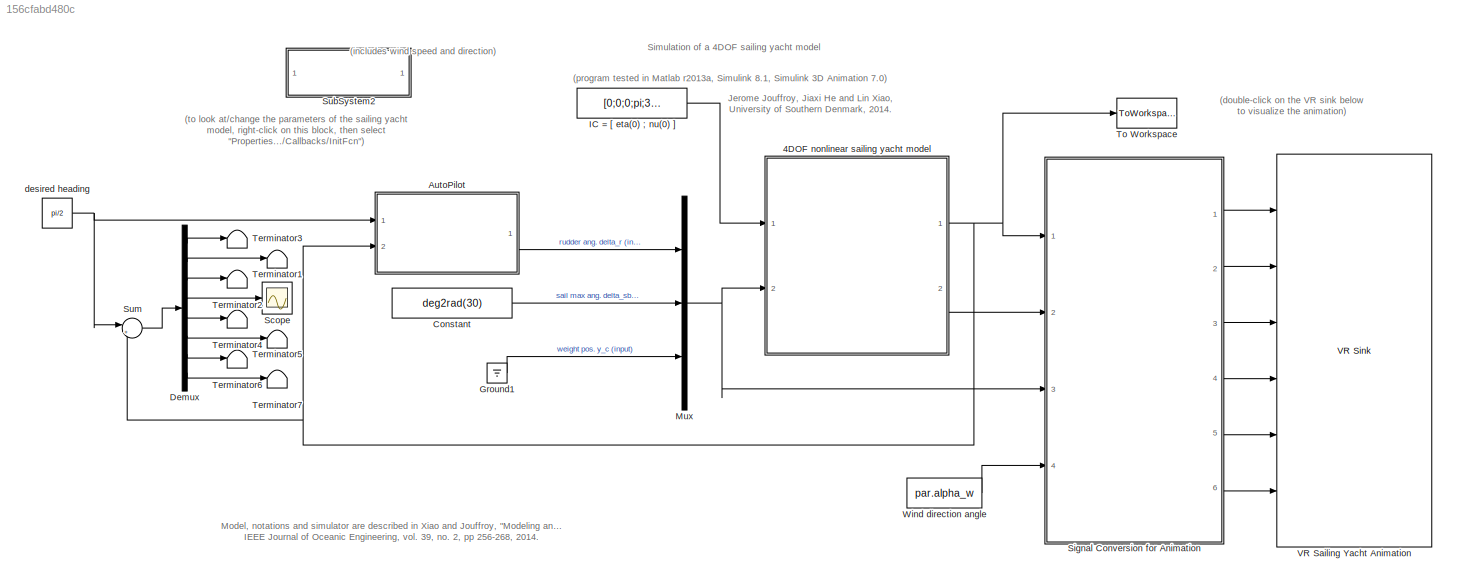
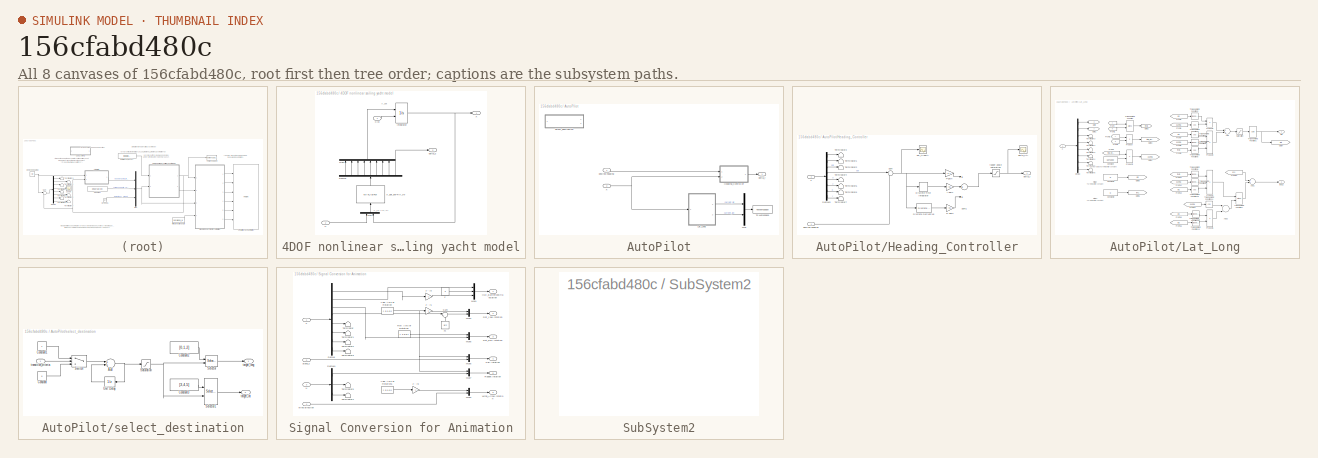
[diagram: thumbnail index - all 8 canvases of the model, root first then tree order]
MODEL slx_156cfabd480c
KIND model
CONFIG AbsTol = auto
CONFIG FixedStep = 0.05
CONFIG MaxStep = auto
CONFIG MinStep = auto
CONFIG RelTol = 1e-3
CONFIG SampleTimeConstraint = Unconstrained
CONFIG Solver = ode45
CONFIG SolverMode = Auto
CONFIG SolverName = ode45
CONFIG StartTime = 0.0
CONFIG StopTime = 70
BLOCK [SubSystem] 4DOF nonlinear sailing yacht model
  Ports = [2, 2]
  RequestExecContextInheritance = off
  Variant = off
BLOCK [Demux] 4DOF nonlinear sailing yacht model/Demux
  DisplayOption = bar
  Outputs = 9
  Ports = [1, 9]
BLOCK [Integrator] 4DOF nonlinear sailing yacht model/Integrator
  InitialCondition = [0;0;0;pi;1;0;0;0]
  InitialConditionSource = external
  Ports = [2, 1]
BLOCK [Mux] 4DOF nonlinear sailing yacht model/Mux
  DisplayOption = bar
  Inputs = 2
  Ports = [2, 1]
BLOCK [Mux] 4DOF nonlinear sailing yacht model/Mux1
  DisplayOption = bar
  Inputs = 8
  Ports = [8, 1]
BLOCK [Inport] 4DOF nonlinear sailing yacht model/U
  IconDisplay = Port number
  Port = 2
BLOCK [Outport] 4DOF nonlinear sailing yacht model/X
  IconDisplay = Port number
BLOCK [Inport] 4DOF nonlinear sailing yacht model/X(0)
  IconDisplay = Port number
BLOCK [MATLABFcn] 4DOF nonlinear sailing yacht model/X_dot_ext=f(V_in)
  MATLABFcn = f
  OutputDimensions = 9
  Ports = [1, 1]
BLOCK [Outport] 4DOF nonlinear sailing yacht model/delta_s
  IconDisplay = Port number
  Port = 2
BLOCK [SubSystem] AutoPilot
  PermitHierarchicalResolution = None
  Ports = [2, 1]
  RequestExecContextInheritance = off
  SystemSampleTime = 0.1
  TreatAsAtomicUnit = on
  Variant = off
BLOCK [SubSystem] AutoPilot/Heading_Controller
  Ports = [2, 1]
  RequestExecContextInheritance = off
  Variant = off
BLOCK [Gain] AutoPilot/Heading_Controller/D-gain
  Gain = -0.1
  OutDataTypeStr = Inherit: Inherit via internal rule
  ParamDataTypeStr = Inherit: Inherit via internal rule
  SaturateOnIntegerOverflow = off
BLOCK [Demux] AutoPilot/Heading_Controller/Demux3
  DisplayOption = bar
  Outputs = 8
  Ports = [1, 8]
BLOCK [Reference] AutoPilot/Heading_Controller/Discrete Derivative  REF=simulink/Discrete/Discrete Derivative
  Ports = [1, 1]
  SourceBlock = simulink/Discrete/Discrete Derivative
  SourceType = Discrete Derivative
BLOCK [DiscreteIntegrator] AutoPilot/Heading_Controller/Discrete-Time Integrator
  ICPrevOutput = DiscIntNeverNeededParam
  ICPrevScaledInput = DiscIntNeverNeededParam
  InitialConditionSetting = State (most efficient)
  IntegratorMethod = Integration: Trapezoidal
  Ports = [1, 1]
  SampleTime = -1
BLOCK [Gain] AutoPilot/Heading_Controller/I-gain
  Gain = -0.1
  OutDataTypeStr = Inherit: Inherit via internal rule
  ParamDataTypeStr = Inherit: Inherit via internal rule
  SaturateOnIntegerOverflow = off
BLOCK [Gain] AutoPilot/Heading_Controller/P-gain
  Gain = -0.7
  OutDataTypeStr = Inherit: Inherit via internal rule
  ParamDataTypeStr = Inherit: Inherit via internal rule
  SaturateOnIntegerOverflow = off
BLOCK [Sum] AutoPilot/Heading_Controller/Sum
  IconShape = round
  InputSameDT = off
  Inputs = |+-
  OutDataTypeStr = Inherit: Inherit via internal rule
  Ports = [2, 1]
BLOCK [Sum] AutoPilot/Heading_Controller/Sum1
  InputSameDT = off
  Inputs = +++
  OutDataTypeStr = Inherit: Inherit via internal rule
  Ports = [3, 1]
  SaturateOnIntegerOverflow = off
BLOCK [Terminator] AutoPilot/Heading_Controller/Terminator1
BLOCK [Terminator] AutoPilot/Heading_Controller/Terminator2
BLOCK [Terminator] AutoPilot/Heading_Controller/Terminator3
BLOCK [Terminator] AutoPilot/Heading_Controller/Terminator4
BLOCK [Terminator] AutoPilot/Heading_Controller/Terminator5
BLOCK [Terminator] AutoPilot/Heading_Controller/Terminator6
BLOCK [Terminator] AutoPilot/Heading_Controller/Terminator7
BLOCK [Inport] AutoPilot/Heading_Controller/X
  IconDisplay = Port number
  Port = 2
BLOCK [Outport] AutoPilot/Heading_Controller/delta_r
  IconDisplay = Port number
BLOCK [Scope] AutoPilot/Heading_Controller/delta_r(t)
  Ports = [1]
  ScopeSpecificationString = C++SS(StrPVP('Location','[357, 320, 681, 559]'),StrPVP('Open','off'),MxPVP('AxesTitles',24,'struct(''axes1'',''%<SignalLabel>'')'),MxPVP('ScopeGraphics',28,'struct(''FigureColor'',''[0.501960784313725 0.501960784313725 0.501960784313725]'',''AxesColor'',''[0 0 0]'',''AxesTickColor'',''[1 1 1]'',''LineColors'',''[1 1 0;1 0 1;0 1 1;1 0 0;0 1 0;0 0 1]'',''LineStyles'',''-|-|-|-|-|-'',''LineWidths'','...<+323ch>
BLOCK [Inport] AutoPilot/Heading_Controller/desired heading
  IconDisplay = Port number
BLOCK [Scope] AutoPilot/Heading_Controller/psi_tilde(t)
  Ports = [1]
  ScopeSpecificationString = C++SS(StrPVP('Location','[390, 524, 714, 763]'),StrPVP('Open','off'),MxPVP('AxesTitles',24,'struct(''axes1'',''%<SignalLabel>'')'),MxPVP('ScopeGraphics',28,'struct(''FigureColor'',''[0.501960784313725 0.501960784313725 0.501960784313725]'',''AxesColor'',''[0 0 0]'',''AxesTickColor'',''[1 1 1]'',''LineColors'',''[1 1 0;1 0 1;0 1 1;1 0 0;0 1 0;0 0 1]'',''LineStyles'',''-|-|-|-|-|-'',''LineWidths'','...<+364ch>
BLOCK [Saturate] AutoPilot/Heading_Controller/rudder angle saturation
  InputPortMap = u0
  LinearizeAsGain = off
  LowerLimit = -pi/3
  Ports = [1, 1]
  UpperLimit = pi/3
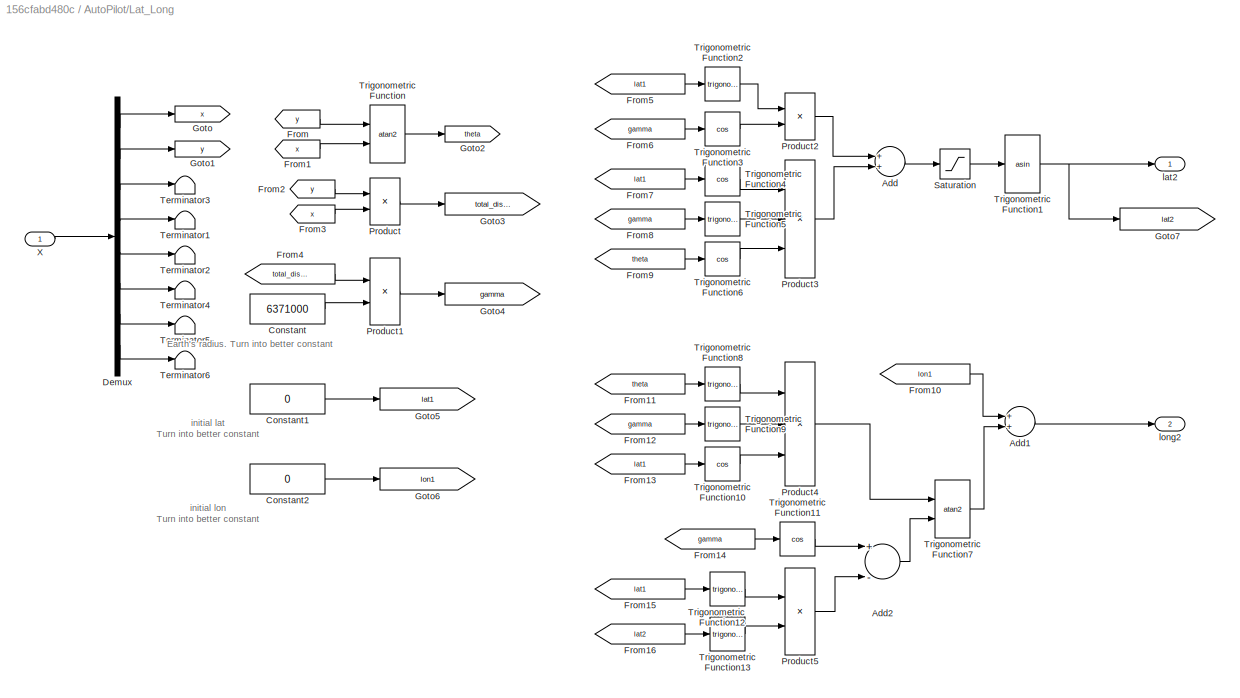
BLOCK [SubSystem] AutoPilot/Lat_Long
  Ports = [1, 2]
  RequestExecContextInheritance = off
  Variant = off
BLOCK [Sum] AutoPilot/Lat_Long/Add
  InputSameDT = off
  OutDataTypeStr = Inherit: Inherit via internal rule
  Ports = [2, 1]
  SaturateOnIntegerOverflow = off
BLOCK [Sum] AutoPilot/Lat_Long/Add1
  InputSameDT = off
  OutDataTypeStr = Inherit: Inherit via internal rule
  Ports = [2, 1]
  SaturateOnIntegerOverflow = off
BLOCK [Sum] AutoPilot/Lat_Long/Add2
  InputSameDT = off
  Inputs = +-
  OutDataTypeStr = Inherit: Inherit via internal rule
  Ports = [2, 1]
  SaturateOnIntegerOverflow = off
BLOCK [Constant] AutoPilot/Lat_Long/Constant
  Value = 6371000
BLOCK [Constant] AutoPilot/Lat_Long/Constant1
  Value = 0
BLOCK [Constant] AutoPilot/Lat_Long/Constant2
  Value = 0
BLOCK [Demux] AutoPilot/Lat_Long/Demux
  DisplayOption = bar
  Outputs = 8
  Ports = [1, 8]
BLOCK [From] AutoPilot/Lat_Long/From
  GotoTag = y
BLOCK [From] AutoPilot/Lat_Long/From1
  GotoTag = x
BLOCK [From] AutoPilot/Lat_Long/From10
  GotoTag = lon1
BLOCK [From] AutoPilot/Lat_Long/From11
  GotoTag = theta
BLOCK [From] AutoPilot/Lat_Long/From12
  GotoTag = gamma
BLOCK [From] AutoPilot/Lat_Long/From13
  GotoTag = lat1
BLOCK [From] AutoPilot/Lat_Long/From14
  GotoTag = gamma
BLOCK [From] AutoPilot/Lat_Long/From15
  GotoTag = lat1
BLOCK [From] AutoPilot/Lat_Long/From16
  GotoTag = lat2
BLOCK [From] AutoPilot/Lat_Long/From2
  GotoTag = y
BLOCK [From] AutoPilot/Lat_Long/From3
  GotoTag = x
BLOCK [From] AutoPilot/Lat_Long/From4
  GotoTag = total_distance
BLOCK [From] AutoPilot/Lat_Long/From5
  GotoTag = lat1
BLOCK [From] AutoPilot/Lat_Long/From6
  GotoTag = gamma
BLOCK [From] AutoPilot/Lat_Long/From7
  GotoTag = lat1
BLOCK [From] AutoPilot/Lat_Long/From8
  GotoTag = gamma
BLOCK [From] AutoPilot/Lat_Long/From9
  GotoTag = theta
BLOCK [Goto] AutoPilot/Lat_Long/Goto
  GotoTag = x
BLOCK [Goto] AutoPilot/Lat_Long/Goto1
  GotoTag = y
BLOCK [Goto] AutoPilot/Lat_Long/Goto2
  GotoTag = theta
BLOCK [Goto] AutoPilot/Lat_Long/Goto3
  GotoTag = total_distance
BLOCK [Goto] AutoPilot/Lat_Long/Goto4
  GotoTag = gamma
BLOCK [Goto] AutoPilot/Lat_Long/Goto5
  GotoTag = lat1
BLOCK [Goto] AutoPilot/Lat_Long/Goto6
  GotoTag = lon1
BLOCK [Goto] AutoPilot/Lat_Long/Goto7
  GotoTag = lat2
BLOCK [Product] AutoPilot/Lat_Long/Product
  InputSameDT = off
  OutDataTypeStr = Inherit: Inherit via internal rule
  Ports = [2, 1]
  RndMeth = Floor
  SaturateOnIntegerOverflow = off
BLOCK [Product] AutoPilot/Lat_Long/Product1
  InputSameDT = off
  Inputs = */
  OutDataTypeStr = Inherit: Inherit via internal rule
  Ports = [2, 1]
  RndMeth = Floor
  SaturateOnIntegerOverflow = off
BLOCK [Product] AutoPilot/Lat_Long/Product2
  InputSameDT = off
  OutDataTypeStr = Inherit: Inherit via internal rule
  Ports = [2, 1]
  RndMeth = Floor
  SaturateOnIntegerOverflow = off
BLOCK [Product] AutoPilot/Lat_Long/Product3
  InputSameDT = off
  Inputs = ***
  OutDataTypeStr = Inherit: Inherit via internal rule
  Ports = [3, 1]
  RndMeth = Floor
  SaturateOnIntegerOverflow = off
BLOCK [Product] AutoPilot/Lat_Long/Product4
  InputSameDT = off
  Inputs = 3
  OutDataTypeStr = Inherit: Inherit via internal rule
  Ports = [3, 1]
  RndMeth = Floor
  SaturateOnIntegerOverflow = off
BLOCK [Product] AutoPilot/Lat_Long/Product5
  InputSameDT = off
  OutDataTypeStr = Inherit: Inherit via internal rule
  Ports = [2, 1]
  RndMeth = Floor
  SaturateOnIntegerOverflow = off
BLOCK [Saturate] AutoPilot/Lat_Long/Saturation
  InputPortMap = u0
  LowerLimit = -1
  Ports = [1, 1]
  UpperLimit = 1
BLOCK [Terminator] AutoPilot/Lat_Long/Terminator1
BLOCK [Terminator] AutoPilot/Lat_Long/Terminator2
BLOCK [Terminator] AutoPilot/Lat_Long/Terminator3
BLOCK [Terminator] AutoPilot/Lat_Long/Terminator4
BLOCK [Terminator] AutoPilot/Lat_Long/Terminator5
BLOCK [Terminator] AutoPilot/Lat_Long/Terminator6
BLOCK [Trigonometry] AutoPilot/Lat_Long/Trigonometric Function
  Operator = atan2
  Ports = [2, 1]
BLOCK [Trigonometry] AutoPilot/Lat_Long/Trigonometric Function1
  Operator = asin
  Ports = [1, 1]
BLOCK [Trigonometry] AutoPilot/Lat_Long/Trigonometric Function10
  Operator = cos
  Ports = [1, 1]
BLOCK [Trigonometry] AutoPilot/Lat_Long/Trigonometric Function11
  Operator = cos
  Ports = [1, 1]
BLOCK [Trigonometry] AutoPilot/Lat_Long/Trigonometric Function12
  Ports = [1, 1]
BLOCK [Trigonometry] AutoPilot/Lat_Long/Trigonometric Function13
  Ports = [1, 1]
BLOCK [Trigonometry] AutoPilot/Lat_Long/Trigonometric Function2
  Ports = [1, 1]
BLOCK [Trigonometry] AutoPilot/Lat_Long/Trigonometric Function3
  Operator = cos
  Ports = [1, 1]
BLOCK [Trigonometry] AutoPilot/Lat_Long/Trigonometric Function4
  Operator = cos
  Ports = [1, 1]
BLOCK [Trigonometry] AutoPilot/Lat_Long/Trigonometric Function5
  Ports = [1, 1]
BLOCK [Trigonometry] AutoPilot/Lat_Long/Trigonometric Function6
  Operator = cos
  Ports = [1, 1]
BLOCK [Trigonometry] AutoPilot/Lat_Long/Trigonometric Function7
  Operator = atan2
  Ports = [2, 1]
BLOCK [Trigonometry] AutoPilot/Lat_Long/Trigonometric Function8
  Ports = [1, 1]
BLOCK [Trigonometry] AutoPilot/Lat_Long/Trigonometric Function9
  Ports = [1, 1]
BLOCK [Inport] AutoPilot/Lat_Long/X
  IconDisplay = Port number
BLOCK [Outport] AutoPilot/Lat_Long/lat2
  IconDisplay = Port number
BLOCK [Outport] AutoPilot/Lat_Long/long2
  IconDisplay = Port number
  Port = 2
BLOCK [Mux] AutoPilot/Mux
  DisplayOption = bar
  Inputs = 2
  Ports = [2, 1]
BLOCK [ToWorkspace] AutoPilot/To Workspace
  MaxDataPoints = inf
  Ports = [1]
  SampleTime = -1
  SaveFormat = Structure With Time
  VariableName = current_pos
BLOCK [Inport] AutoPilot/X
  IconDisplay = Port number
  Port = 2
BLOCK [Outport] AutoPilot/delta_r
  IconDisplay = Port number
BLOCK [Inport] AutoPilot/desired heading
  IconDisplay = Port number
BLOCK [SubSystem] AutoPilot/select_destination
  Ports = [1, 2]
  RequestExecContextInheritance = off
  Variant = off
BLOCK [Sum] AutoPilot/select_destination/Add
  InputSameDT = off
  OutDataTypeStr = Inherit: Inherit via internal rule
  Ports = [2, 1]
  SaturateOnIntegerOverflow = off
BLOCK [Constant] AutoPilot/select_destination/Constant
  OutDataTypeStr = int32
  Value = 0
BLOCK [Constant] AutoPilot/select_destination/Constant1
  OutDataTypeStr = int32
BLOCK [Constant] AutoPilot/select_destination/Constant2
  Value = [0,1,2]
BLOCK [Constant] AutoPilot/select_destination/Constant3
  Value = [3,4,5]
BLOCK [Saturate] AutoPilot/select_destination/Saturation
  InputPortMap = u0
  LowerLimit = 0
  Ports = [1, 1]
  UpperLimit = 2
BLOCK [Selector] AutoPilot/select_destination/Selector
  IndexMode = Zero-based
  IndexOptions = Index vector (port)
  Indices = [1 3]
  InputPortWidth = 3
  OutputSizes = 1
  Ports = [2, 1]
BLOCK [Selector] AutoPilot/select_destination/Selector1
  IndexMode = Zero-based
  IndexOptions = Index vector (port)
  Indices = [1 3]
  InputPortWidth = 3
  OutputSizes = 1
  Ports = [2, 1]
BLOCK [Switch] AutoPilot/select_destination/Switch
  Criteria = u2 > Threshold
  InputSameDT = off
  SaturateOnIntegerOverflow = off
BLOCK [UnitDelay] AutoPilot/select_destination/Unit Delay
  InputProcessing = Elements as channels (sample based)
  SampleTime = -1
BLOCK [Outport] AutoPilot/select_destination/target_lat
  IconDisplay = Port number
  Port = 2
BLOCK [Outport] AutoPilot/select_destination/target_long
  IconDisplay = Port number
BLOCK [Inport] AutoPilot/select_destination/transition_criteria
  IconDisplay = Port number
  OutDataTypeStr = boolean
BLOCK [Constant] Constant
  Value = deg2rad(30)
BLOCK [Demux] Demux
  DisplayOption = bar
  Outputs = 8
  Ports = [1, 8]
BLOCK [Ground] Ground1
BLOCK [Constant] IC = [ eta(0) ; nu(0) ]
  Value = [0;0;0;pi;3;0;0;0]
BLOCK [Mux] Mux
  DisplayOption = bar
  Inputs = 3
  Ports = [3, 1]
BLOCK [Scope] Scope
  Ports = [1]
  ScopeSpecificationString = C++SS(StrPVP('Location','[1, 49, 1681, 1009]'),StrPVP('Open','off'),MxPVP('AxesTitles',24,'struct(''axes1'',''%<SignalLabel>'')'),MxPVP('ScopeGraphics',28,'struct(''FigureColor'',''[0.5 0.5 0.5]'',''AxesColor'',''[0 0 0]'',''AxesTickColor'',''[1 1 1]'',''LineColors'',''[1 1 0;1 0 1;0 1 1;1 0 0;0 1 0;0 0 1]'',''LineStyles'',''-|-|-|-|-|-'',''LineWidths'',''[0.5 0.5 0.5 0.5 0.5 0.5]'',''MarkerStyles...<+270ch>
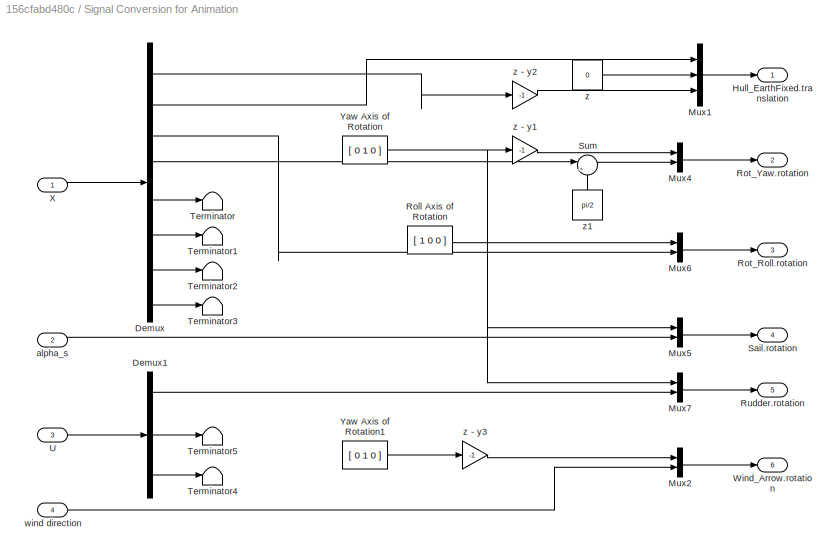
BLOCK [SubSystem] Signal Conversion for Animation
  Ports = [4, 6]
  RequestExecContextInheritance = off
  Variant = off
BLOCK [Demux] Signal Conversion for Animation/Demux
  DisplayOption = bar
  Outputs = 8
  Ports = [1, 8]
BLOCK [Demux] Signal Conversion for Animation/Demux1
  DisplayOption = bar
  Outputs = 3
  Ports = [1, 3]
BLOCK [Outport] Signal Conversion for Animation/Hull_EarthFixed.translation
  IconDisplay = Port number
BLOCK [Mux] Signal Conversion for Animation/Mux1
  DisplayOption = bar
  Inputs = 3
  Ports = [3, 1]
BLOCK [Mux] Signal Conversion for Animation/Mux2
  DisplayOption = bar
  Inputs = 2
  Ports = [2, 1]
BLOCK [Mux] Signal Conversion for Animation/Mux4
  DisplayOption = bar
  Inputs = 2
  Ports = [2, 1]
BLOCK [Mux] Signal Conversion for Animation/Mux5
  DisplayOption = bar
  Inputs = 2
  Ports = [2, 1]
BLOCK [Mux] Signal Conversion for Animation/Mux6
  DisplayOption = bar
  Inputs = 2
  Ports = [2, 1]
BLOCK [Mux] Signal Conversion for Animation/Mux7
  DisplayOption = bar
  Inputs = 2
  Ports = [2, 1]
BLOCK [Constant] Signal Conversion for Animation/Roll Axis of Rotation
  Value = [ 1 0 0 ]
BLOCK [Outport] Signal Conversion for Animation/Rot_Roll.rotation
  IconDisplay = Port number
  Port = 3
BLOCK [Outport] Signal Conversion for Animation/Rot_Yaw.rotation
  IconDisplay = Port number
  Port = 2
BLOCK [Outport] Signal Conversion for Animation/Rudder.rotation
  IconDisplay = Port number
  Port = 5
BLOCK [Outport] Signal Conversion for Animation/Sail.rotation
  IconDisplay = Port number
  Port = 4
BLOCK [Sum] Signal Conversion for Animation/Sum
  IconShape = round
  InputSameDT = off
  Inputs = |+-
  OutDataTypeStr = Inherit: Inherit via internal rule
  Ports = [2, 1]
BLOCK [Terminator] Signal Conversion for Animation/Terminator
BLOCK [Terminator] Signal Conversion for Animation/Terminator1
BLOCK [Terminator] Signal Conversion for Animation/Terminator2
BLOCK [Terminator] Signal Conversion for Animation/Terminator3
BLOCK [Terminator] Signal Conversion for Animation/Terminator4
BLOCK [Terminator] Signal Conversion for Animation/Terminator5
BLOCK [Inport] Signal Conversion for Animation/U
  IconDisplay = Port number
  Port = 3
BLOCK [Outport] Signal Conversion for Animation/Wind_Arrow.rotation
  IconDisplay = Port number
  Port = 6
BLOCK [Inport] Signal Conversion for Animation/X
  IconDisplay = Port number
BLOCK [Constant] Signal Conversion for Animation/Yaw Axis of Rotation
  Value = [ 0 1 0 ]
BLOCK [Constant] Signal Conversion for Animation/Yaw Axis of Rotation1
  Value = [ 0 1 0 ]
BLOCK [Inport] Signal Conversion for Animation/alpha_s
  IconDisplay = Port number
  Port = 2
BLOCK [Inport] Signal Conversion for Animation/wind direction
  IconDisplay = Port number
  Port = 4
BLOCK [Constant] Signal Conversion for Animation/z
  Value = 0
BLOCK [Gain] Signal Conversion for Animation/z - y1
  Gain = -1
  OutDataTypeStr = Inherit: Inherit via internal rule
  ParamDataTypeStr = Inherit: Inherit via internal rule
  SaturateOnIntegerOverflow = off
BLOCK [Gain] Signal Conversion for Animation/z - y2
  Gain = -1
  OutDataTypeStr = Inherit: Inherit via internal rule
  ParamDataTypeStr = Inherit: Inherit via internal rule
  SaturateOnIntegerOverflow = off
BLOCK [Gain] Signal Conversion for Animation/z - y3
  Gain = -1
  OutDataTypeStr = Inherit: Inherit via internal rule
  ParamDataTypeStr = Inherit: Inherit via internal rule
  SaturateOnIntegerOverflow = off
BLOCK [Constant] Signal Conversion for Animation/z1
  Value = pi/2
BLOCK [SubSystem] SubSystem2
  InitFcn = global par\npar.m = 25900;                         % (kg),mass of the vehicle\npar.Ixx = 133690;          \npar.Izz = 24760;      \npar.Ixz = 2180;                        % moment of inertia\npar.a11 = 970;   \npar.a22 = 17430; \npar.a44 = 106500;\npar.a66 = 101650;\npar.a24 = -13160;\npar.a26 = -6190; \npar.a46 = 4730;                        % (kg),added mass coef.\n\npar.vt = 10;                           % ...<+1841ch>
  Ports = []
  RequestExecContextInheritance = off
  Variant = off
BLOCK [Sum] Sum
  IconShape = round
  InputSameDT = off
  Inputs = |+-
  OutDataTypeStr = Inherit: Inherit via internal rule
  Ports = [2, 1]
  SaturateOnIntegerOverflow = off
BLOCK [Terminator] Terminator1
BLOCK [Terminator] Terminator2
BLOCK [Terminator] Terminator3
BLOCK [Terminator] Terminator4
BLOCK [Terminator] Terminator5
BLOCK [Terminator] Terminator6
BLOCK [Terminator] Terminator7
BLOCK [ToWorkspace] To Workspace
  MaxDataPoints = inf
  Ports = [1]
  SampleTime = -1
  SaveFormat = Structure With Time
  VariableName = X
BLOCK [Reference] VR Sailing Yacht Animation  REF=vrlib/VR Sink
  InstantiateOnLoad = on
  Ports = [6]
  SourceBlock = vrlib/VR Sink
  SourceType = Virtual Reality Sink
BLOCK [Constant] Wind direction angle
  Value = par.alpha_w
BLOCK [Constant] desired heading
  Value = pi/2
ANNOTATION (root): (double-click on the VR sink below to visualize the animation)
ANNOTATION (root): (includes wind speed and direction)
ANNOTATION (root): (program tested in Matlab r2013a, Simulink 8.1, Simulink 3D Animation 7.0)
ANNOTATION (root): (to look at/change the parameters of the sailing yacht model, right-click on this block, then select "Properties.../Callbacks/InitFcn")
ANNOTATION (root): Jerome Jouffroy, Jiaxi He and Lin Xiao, University of Southern Denmark, 2014.
ANNOTATION (root): Model, notations and simulator are described in Xiao and Jouffroy, "Modeling and nonlinear heading control of sailing yachts", IEEE Journal of Oceanic Engineering, vol. 39, no. 2, pp 256-268, 2014.
ANNOTATION (root): Simulation of a 4DOF sailing yacht model
ANNOTATION 4DOF nonlinear sailing yacht model: V_in = [U,X]
ANNOTATION 4DOF nonlinear sailing yacht model: X_dot
ANNOTATION AutoPilot/Lat_Long: Earth's radius. Turn into better constant
ANNOTATION AutoPilot/Lat_Long: initial lat Turn into better constant
ANNOTATION AutoPilot/Lat_Long: initial lon Turn into better constant
LINE 4DOF nonlinear sailing yacht model/Demux:1 -> 4DOF nonlinear sailing yacht model/Mux1:1
LINE 4DOF nonlinear sailing yacht model/Demux:2 -> 4DOF nonlinear sailing yacht model/Mux1:2
LINE 4DOF nonlinear sailing yacht model/Demux:3 -> 4DOF nonlinear sailing yacht model/Mux1:3
LINE 4DOF nonlinear sailing yacht model/Demux:4 -> 4DOF nonlinear sailing yacht model/Mux1:4
LINE 4DOF nonlinear sailing yacht model/Demux:5 -> 4DOF nonlinear sailing yacht model/Mux1:5
LINE 4DOF nonlinear sailing yacht model/Demux:6 -> 4DOF nonlinear sailing yacht model/Mux1:6
LINE 4DOF nonlinear sailing yacht model/Demux:7 -> 4DOF nonlinear sailing yacht model/Mux1:7
LINE 4DOF nonlinear sailing yacht model/Demux:8 -> 4DOF nonlinear sailing yacht model/Mux1:8
LINE 4DOF nonlinear sailing yacht model/Demux:9 -> 4DOF nonlinear sailing yacht model/delta_s:1
NET 4DOF nonlinear sailing yacht model/Integrator:1 -> 4DOF nonlinear sailing yacht model/Mux:2, 4DOF nonlinear sailing yacht model/X:1
LINE 4DOF nonlinear sailing yacht model/Mux1:1 -> 4DOF nonlinear sailing yacht model/Integrator:1
LINE 4DOF nonlinear sailing yacht model/Mux:1 -> 4DOF nonlinear sailing yacht model/X_dot_ext=f(V_in):1
LINE 4DOF nonlinear sailing yacht model/U:1 -> 4DOF nonlinear sailing yacht model/Mux:1
LINE 4DOF nonlinear sailing yacht model/X(0):1 -> 4DOF nonlinear sailing yacht model/Integrator:2
LINE 4DOF nonlinear sailing yacht model/X_dot_ext=f(V_in):1 -> 4DOF nonlinear sailing yacht model/Demux:1
NET 4DOF nonlinear sailing yacht model:1 -> AutoPilot:2, Signal Conversion for Animation:1, Sum:2, To Workspace:1
LINE 4DOF nonlinear sailing yacht model:2 -> Signal Conversion for Animation:2
LINE AutoPilot/Heading_Controller/D-gain:1 -> AutoPilot/Heading_Controller/Sum1:3
LINE AutoPilot/Heading_Controller/Demux3:1 -> AutoPilot/Heading_Controller/Terminator3:1
LINE AutoPilot/Heading_Controller/Demux3:2 -> AutoPilot/Heading_Controller/Terminator1:1
LINE AutoPilot/Heading_Controller/Demux3:3 -> AutoPilot/Heading_Controller/Terminator2:1
LINE AutoPilot/Heading_Controller/Demux3:4 -> AutoPilot/Heading_Controller/Sum:1
LINE AutoPilot/Heading_Controller/Demux3:5 -> AutoPilot/Heading_Controller/Terminator4:1
LINE AutoPilot/Heading_Controller/Demux3:6 -> AutoPilot/Heading_Controller/Terminator5:1
LINE AutoPilot/Heading_Controller/Demux3:7 -> AutoPilot/Heading_Controller/Terminator6:1
LINE AutoPilot/Heading_Controller/Demux3:8 -> AutoPilot/Heading_Controller/Terminator7:1
LINE AutoPilot/Heading_Controller/Discrete Derivative:1 -> AutoPilot/Heading_Controller/D-gain:1
LINE AutoPilot/Heading_Controller/Discrete-Time Integrator:1 -> AutoPilot/Heading_Controller/I-gain:1
LINE AutoPilot/Heading_Controller/I-gain:1 -> AutoPilot/Heading_Controller/Sum1:2
LINE AutoPilot/Heading_Controller/P-gain:1 -> AutoPilot/Heading_Controller/Sum1:1
LINE AutoPilot/Heading_Controller/Sum1:1 -> AutoPilot/Heading_Controller/rudder angle saturation:1
NET AutoPilot/Heading_Controller/Sum:1 -> AutoPilot/Heading_Controller/Discrete Derivative:1, AutoPilot/Heading_Controller/Discrete-Time Integrator:1, AutoPilot/Heading_Controller/P-gain:1, AutoPilot/Heading_Controller/psi_tilde(t):1
LINE AutoPilot/Heading_Controller/X:1 -> AutoPilot/Heading_Controller/Demux3:1
LINE AutoPilot/Heading_Controller/desired heading:1 -> AutoPilot/Heading_Controller/Sum:2
NET AutoPilot/Heading_Controller/rudder angle saturation:1 -> AutoPilot/Heading_Controller/delta_r(t):1, AutoPilot/Heading_Controller/delta_r:1
LINE AutoPilot/Heading_Controller:1 -> AutoPilot/delta_r:1
LINE AutoPilot/Lat_Long/Add1:1 -> AutoPilot/Lat_Long/long2:1
LINE AutoPilot/Lat_Long/Add2:1 -> AutoPilot/Lat_Long/Trigonometric Function7:2
LINE AutoPilot/Lat_Long/Add:1 -> AutoPilot/Lat_Long/Saturation:1
LINE AutoPilot/Lat_Long/Constant1:1 -> AutoPilot/Lat_Long/Goto5:1
LINE AutoPilot/Lat_Long/Constant2:1 -> AutoPilot/Lat_Long/Goto6:1
LINE AutoPilot/Lat_Long/Constant:1 -> AutoPilot/Lat_Long/Product1:2
LINE AutoPilot/Lat_Long/Demux:1 -> AutoPilot/Lat_Long/Goto:1
LINE AutoPilot/Lat_Long/Demux:2 -> AutoPilot/Lat_Long/Goto1:1
LINE AutoPilot/Lat_Long/Demux:3 -> AutoPilot/Lat_Long/Terminator3:1
LINE AutoPilot/Lat_Long/Demux:4 -> AutoPilot/Lat_Long/Terminator1:1
LINE AutoPilot/Lat_Long/Demux:5 -> AutoPilot/Lat_Long/Terminator2:1
LINE AutoPilot/Lat_Long/Demux:6 -> AutoPilot/Lat_Long/Terminator4:1
LINE AutoPilot/Lat_Long/Demux:7 -> AutoPilot/Lat_Long/Terminator5:1
LINE AutoPilot/Lat_Long/Demux:8 -> AutoPilot/Lat_Long/Terminator6:1
LINE AutoPilot/Lat_Long/From10:1 -> AutoPilot/Lat_Long/Add1:1
LINE AutoPilot/Lat_Long/From11:1 -> AutoPilot/Lat_Long/Trigonometric Function8:1
LINE AutoPilot/Lat_Long/From12:1 -> AutoPilot/Lat_Long/Trigonometric Function9:1
LINE AutoPilot/Lat_Long/From13:1 -> AutoPilot/Lat_Long/Trigonometric Function10:1
LINE AutoPilot/Lat_Long/From14:1 -> AutoPilot/Lat_Long/Trigonometric Function11:1
LINE AutoPilot/Lat_Long/From15:1 -> AutoPilot/Lat_Long/Trigonometric Function12:1
LINE AutoPilot/Lat_Long/From16:1 -> AutoPilot/Lat_Long/Trigonometric Function13:1
LINE AutoPilot/Lat_Long/From1:1 -> AutoPilot/Lat_Long/Trigonometric Function:2
LINE AutoPilot/Lat_Long/From2:1 -> AutoPilot/Lat_Long/Product:1
LINE AutoPilot/Lat_Long/From3:1 -> AutoPilot/Lat_Long/Product:2
LINE AutoPilot/Lat_Long/From4:1 -> AutoPilot/Lat_Long/Product1:1
LINE AutoPilot/Lat_Long/From5:1 -> AutoPilot/Lat_Long/Trigonometric Function2:1
LINE AutoPilot/Lat_Long/From6:1 -> AutoPilot/Lat_Long/Trigonometric Function3:1
LINE AutoPilot/Lat_Long/From7:1 -> AutoPilot/Lat_Long/Trigonometric Function4:1
LINE AutoPilot/Lat_Long/From8:1 -> AutoPilot/Lat_Long/Trigonometric Function5:1
LINE AutoPilot/Lat_Long/From9:1 -> AutoPilot/Lat_Long/Trigonometric Function6:1
LINE AutoPilot/Lat_Long/From:1 -> AutoPilot/Lat_Long/Trigonometric Function:1
LINE AutoPilot/Lat_Long/Product1:1 -> AutoPilot/Lat_Long/Goto4:1
LINE AutoPilot/Lat_Long/Product2:1 -> AutoPilot/Lat_Long/Add:1
LINE AutoPilot/Lat_Long/Product3:1 -> AutoPilot/Lat_Long/Add:2
LINE AutoPilot/Lat_Long/Product4:1 -> AutoPilot/Lat_Long/Trigonometric Function7:1
LINE AutoPilot/Lat_Long/Product5:1 -> AutoPilot/Lat_Long/Add2:2
LINE AutoPilot/Lat_Long/Product:1 -> AutoPilot/Lat_Long/Goto3:1
LINE AutoPilot/Lat_Long/Saturation:1 -> AutoPilot/Lat_Long/Trigonometric Function1:1
LINE AutoPilot/Lat_Long/Trigonometric Function10:1 -> AutoPilot/Lat_Long/Product4:3
LINE AutoPilot/Lat_Long/Trigonometric Function11:1 -> AutoPilot/Lat_Long/Add2:1
LINE AutoPilot/Lat_Long/Trigonometric Function12:1 -> AutoPilot/Lat_Long/Product5:1
LINE AutoPilot/Lat_Long/Trigonometric Function13:1 -> AutoPilot/Lat_Long/Product5:2
NET AutoPilot/Lat_Long/Trigonometric Function1:1 -> AutoPilot/Lat_Long/Goto7:1, AutoPilot/Lat_Long/lat2:1
LINE AutoPilot/Lat_Long/Trigonometric Function2:1 -> AutoPilot/Lat_Long/Product2:1
LINE AutoPilot/Lat_Long/Trigonometric Function3:1 -> AutoPilot/Lat_Long/Product2:2
LINE AutoPilot/Lat_Long/Trigonometric Function4:1 -> AutoPilot/Lat_Long/Product3:1
LINE AutoPilot/Lat_Long/Trigonometric Function5:1 -> AutoPilot/Lat_Long/Product3:2
LINE AutoPilot/Lat_Long/Trigonometric Function6:1 -> AutoPilot/Lat_Long/Product3:3
LINE AutoPilot/Lat_Long/Trigonometric Function7:1 -> AutoPilot/Lat_Long/Add1:2
LINE AutoPilot/Lat_Long/Trigonometric Function8:1 -> AutoPilot/Lat_Long/Product4:1
LINE AutoPilot/Lat_Long/Trigonometric Function9:1 -> AutoPilot/Lat_Long/Product4:2
LINE AutoPilot/Lat_Long/Trigonometric Function:1 -> AutoPilot/Lat_Long/Goto2:1
LINE AutoPilot/Lat_Long/X:1 -> AutoPilot/Lat_Long/Demux:1
LINE AutoPilot/Lat_Long:1 -> AutoPilot/Mux:1
LINE AutoPilot/Lat_Long:2 -> AutoPilot/Mux:2
LINE AutoPilot/Mux:1 -> AutoPilot/To Workspace:1
NET AutoPilot/X:1 -> AutoPilot/Heading_Controller:2, AutoPilot/Lat_Long:1
LINE AutoPilot/desired heading:1 -> AutoPilot/Heading_Controller:1
NET AutoPilot/select_destination/Add:1 -> AutoPilot/select_destination/Saturation:1, AutoPilot/select_destination/Unit Delay:1
LINE AutoPilot/select_destination/Constant1:1 -> AutoPilot/select_destination/Switch:1
LINE AutoPilot/select_destination/Constant2:1 -> AutoPilot/select_destination/Selector:1
LINE AutoPilot/select_destination/Constant3:1 -> AutoPilot/select_destination/Selector1:1
LINE AutoPilot/select_destination/Constant:1 -> AutoPilot/select_destination/Switch:3
NET AutoPilot/select_destination/Saturation:1 -> AutoPilot/select_destination/Selector1:2, AutoPilot/select_destination/Selector:2
LINE AutoPilot/select_destination/Selector1:1 -> AutoPilot/select_destination/target_lat:1
LINE AutoPilot/select_destination/Selector:1 -> AutoPilot/select_destination/target_long:1
LINE AutoPilot/select_destination/Switch:1 -> AutoPilot/select_destination/Add:1
LINE AutoPilot/select_destination/Unit Delay:1 -> AutoPilot/select_destination/Add:2
LINE AutoPilot/select_destination/transition_criteria:1 -> AutoPilot/select_destination/Switch:2
LINE AutoPilot:1 -> Mux:1
LINE Constant:1 -> Mux:2
LINE Demux:1 -> Terminator3:1
LINE Demux:2 -> Terminator1:1
LINE Demux:3 -> Terminator2:1
LINE Demux:4 -> Scope:1
LINE Demux:5 -> Terminator4:1
LINE Demux:6 -> Terminator5:1
LINE Demux:7 -> Terminator6:1
LINE Demux:8 -> Terminator7:1
LINE Ground1:1 -> Mux:3
LINE IC = [ eta(0) ; nu(0) ]:1 -> 4DOF nonlinear sailing yacht model:1
NET Mux:1 -> 4DOF nonlinear sailing yacht model:2, Signal Conversion for Animation:3
LINE Signal Conversion for Animation/Demux1:1 -> Signal Conversion for Animation/Mux7:2
LINE Signal Conversion for Animation/Demux1:2 -> Signal Conversion for Animation/Terminator5:1
LINE Signal Conversion for Animation/Demux1:3 -> Signal Conversion for Animation/Terminator4:1
LINE Signal Conversion for Animation/Demux:1 -> Signal Conversion for Animation/z - y2:1
LINE Signal Conversion for Animation/Demux:2 -> Signal Conversion for Animation/Mux1:1
LINE Signal Conversion for Animation/Demux:3 -> Signal Conversion for Animation/Mux6:2
LINE Signal Conversion for Animation/Demux:4 -> Signal Conversion for Animation/Sum:1
LINE Signal Conversion for Animation/Demux:5 -> Signal Conversion for Animation/Terminator:1
LINE Signal Conversion for Animation/Demux:6 -> Signal Conversion for Animation/Terminator1:1
LINE Signal Conversion for Animation/Demux:7 -> Signal Conversion for Animation/Terminator2:1
LINE Signal Conversion for Animation/Demux:8 -> Signal Conversion for Animation/Terminator3:1
LINE Signal Conversion for Animation/Mux1:1 -> Signal Conversion for Animation/Hull_EarthFixed.translation:1
LINE Signal Conversion for Animation/Mux2:1 -> Signal Conversion for Animation/Wind_Arrow.rotation:1
LINE Signal Conversion for Animation/Mux4:1 -> Signal Conversion for Animation/Rot_Yaw.rotation:1
LINE Signal Conversion for Animation/Mux5:1 -> Signal Conversion for Animation/Sail.rotation:1
LINE Signal Conversion for Animation/Mux6:1 -> Signal Conversion for Animation/Rot_Roll.rotation:1
LINE Signal Conversion for Animation/Mux7:1 -> Signal Conversion for Animation/Rudder.rotation:1
LINE Signal Conversion for Animation/Roll Axis of Rotation:1 -> Signal Conversion for Animation/Mux6:1
LINE Signal Conversion for Animation/Sum:1 -> Signal Conversion for Animation/Mux4:2
LINE Signal Conversion for Animation/U:1 -> Signal Conversion for Animation/Demux1:1
LINE Signal Conversion for Animation/X:1 -> Signal Conversion for Animation/Demux:1
LINE Signal Conversion for Animation/Yaw Axis of Rotation1:1 -> Signal Conversion for Animation/z - y3:1
NET Signal Conversion for Animation/Yaw Axis of Rotation:1 -> Signal Conversion for Animation/Mux5:1, Signal Conversion for Animation/Mux7:1, Signal Conversion for Animation/z - y1:1
LINE Signal Conversion for Animation/alpha_s:1 -> Signal Conversion for Animation/Mux5:2
LINE Signal Conversion for Animation/wind direction:1 -> Signal Conversion for Animation/Mux2:2
LINE Signal Conversion for Animation/z - y1:1 -> Signal Conversion for Animation/Mux4:1
LINE Signal Conversion for Animation/z - y2:1 -> Signal Conversion for Animation/Mux1:3
LINE Signal Conversion for Animation/z - y3:1 -> Signal Conversion for Animation/Mux2:1
LINE Signal Conversion for Animation/z1:1 -> Signal Conversion for Animation/Sum:2
LINE Signal Conversion for Animation/z:1 -> Signal Conversion for Animation/Mux1:2
LINE Signal Conversion for Animation:1 -> VR Sailing Yacht Animation:1
LINE Signal Conversion for Animation:2 -> VR Sailing Yacht Animation:2
LINE Signal Conversion for Animation:3 -> VR Sailing Yacht Animation:3
LINE Signal Conversion for Animation:4 -> VR Sailing Yacht Animation:4
LINE Signal Conversion for Animation:5 -> VR Sailing Yacht Animation:5
LINE Signal Conversion for Animation:6 -> VR Sailing Yacht Animation:6
LINE Sum:1 -> Demux:1
LINE Wind direction angle:1 -> Signal Conversion for Animation:4
NET desired heading:1 -> AutoPilot:1, Sum:1
note: NET lines group one-source signal fan-out (src -> all destinations, sorted); 1:1 wires keep LINE
